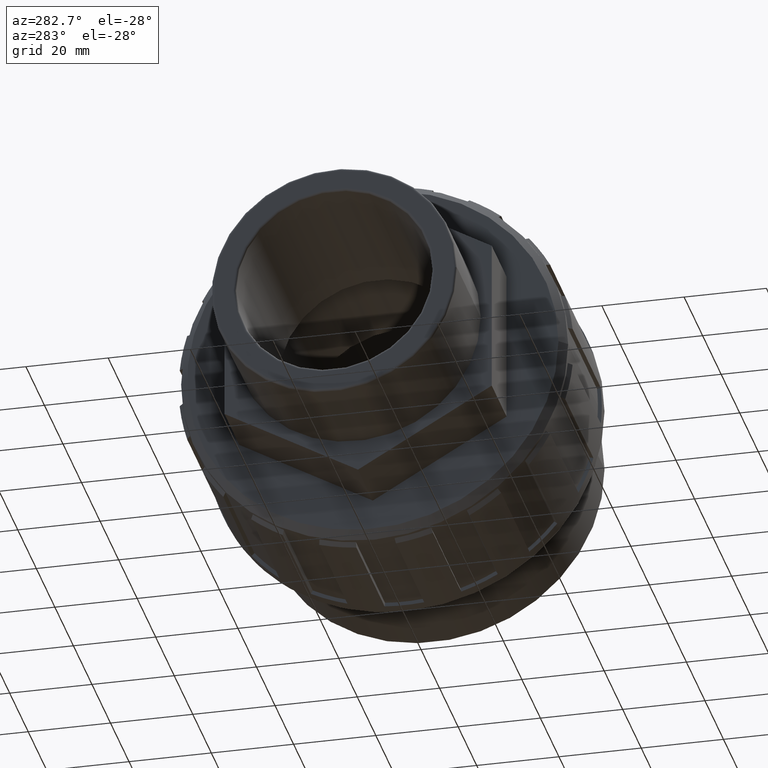
[diagram: clean part render]
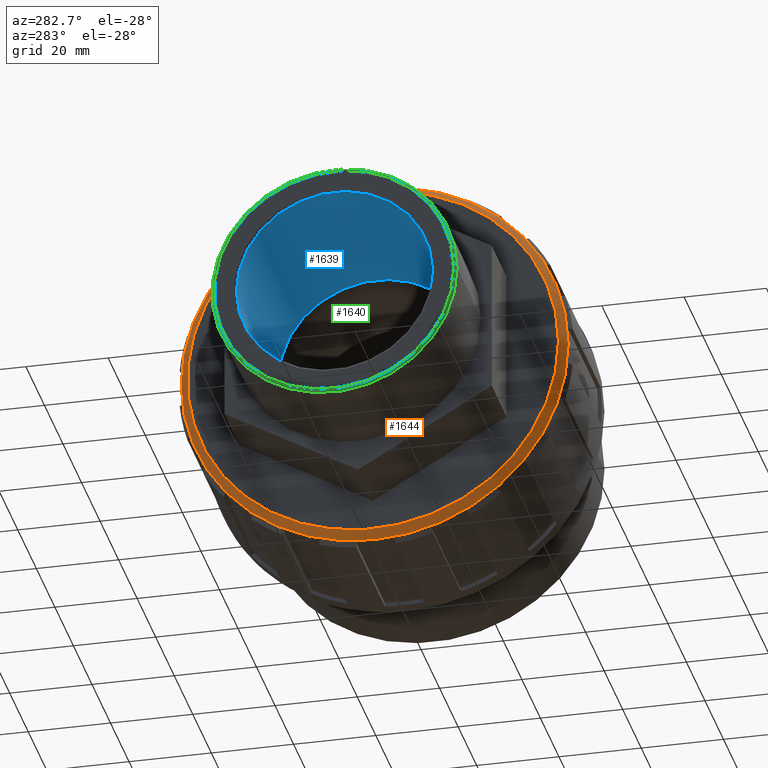
[diagram: same view with three faces highlighted in distinct colors, each labeled with its STEP entity id]
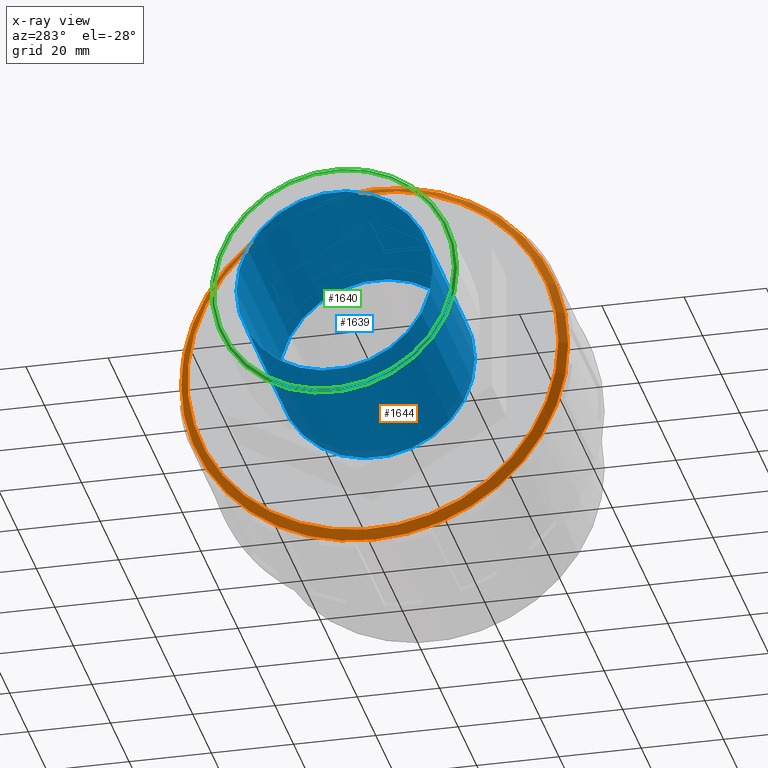
[diagram: x-ray of the same camera — body ghosted, the three highlighted faces saturated]
A machine part, auxiliary view with three faces highlighted in distinct colors.
The next image is the same camera in x-ray (body ghosted, the three faces saturated) — at least one of them is partly hidden behind the body in this view.
Their STEP definitions:

[orange] entity #1644 — the highlighted conical surface has half-angle 45 deg.
#36=CONICAL_SURFACE('',#1816,46.08,45.0000000000001);
#50=FACE_BOUND('',#340,.T.);
#145=CIRCLE('',#1817,47.04);
#146=CIRCLE('',#1818,45.12);
#234=FACE_OUTER_BOUND('',#339,.T.);
#339=EDGE_LOOP('',(#1408));
#340=EDGE_LOOP('',(#1409));
#803=VERTEX_POINT('',#2794);
#804=VERTEX_POINT('',#2796);
#1033=EDGE_CURVE('',#803,#803,#145,.T.);
#1034=EDGE_CURVE('',#804,#804,#146,.T.);
#1408=ORIENTED_EDGE('',*,*,#1033,.T.);
#1409=ORIENTED_EDGE('',*,*,#1034,.T.);
#1644=ADVANCED_FACE('',(#234,#50),#36,.T.);
#1816=AXIS2_PLACEMENT_3D('',#2793,#2301,#2302);
#1817=AXIS2_PLACEMENT_3D('',#2795,#2303,#2304);
#1818=AXIS2_PLACEMENT_3D('',#2797,#2305,#2306);
#2301=DIRECTION('center_axis',(1.,4.89858719658941E-16,0.));
#2302=DIRECTION('ref_axis',(-5.05987925503356E-16,1.,0.));
#2303=DIRECTION('center_axis',(-1.,-4.89858719658941E-16,0.));
#2304=DIRECTION('ref_axis',(-5.21458796415345E-16,1.,0.));
#2305=DIRECTION('center_axis',(1.,4.89858719658941E-16,0.));
#2306=DIRECTION('ref_axis',(-4.89858719658941E-16,1.,0.));
#2793=CARTESIAN_POINT('Origin',(-11.04,4.51159880805884E-15,0.));
#2794=CARTESIAN_POINT('',(-10.08,-47.04,5.76073854318915E-15));
#2795=CARTESIAN_POINT('Origin',(-10.08,4.98186317893142E-15,0.));
#2796=CARTESIAN_POINT('',(-12.,-45.12,-5.52560635775286E-15));
#2797=CARTESIAN_POINT('Origin',(-12.,4.04133443718626E-15,0.));

[blue] entity #1639 — the highlighted cylindrical surface (bore or boss wall) has radius 23.8456 mm, axis along (-1, -0, 0).
#47=FACE_BOUND('',#332,.T.);
#62=CYLINDRICAL_SURFACE('',#1807,23.8456);
#139=CIRCLE('',#1804,23.8456);
#141=CIRCLE('',#1808,23.8456);
#229=FACE_OUTER_BOUND('',#331,.T.);
#331=EDGE_LOOP('',(#1394));
#332=EDGE_LOOP('',(#1395));
#797=VERTEX_POINT('',#2773);
#799=VERTEX_POINT('',#2779);
#1025=EDGE_CURVE('',#797,#797,#139,.T.);
#1027=EDGE_CURVE('',#799,#799,#141,.T.);
#1394=ORIENTED_EDGE('',*,*,#1027,.F.);
#1395=ORIENTED_EDGE('',*,*,#1025,.F.);
#1639=ADVANCED_FACE('',(#229,#47),#62,.F.);
#1804=AXIS2_PLACEMENT_3D('',#2774,#2275,#2276);
#1807=AXIS2_PLACEMENT_3D('',#2778,#2281,#2282);
#1808=AXIS2_PLACEMENT_3D('',#2780,#2283,#2284);
#2275=DIRECTION('center_axis',(1.,4.89858719658941E-16,0.));
#2276=DIRECTION('ref_axis',(-4.88867621639386E-16,1.,6.12323399573677E-17));
#2281=DIRECTION('center_axis',(-1.,-4.89858719658941E-16,0.));
#2282=DIRECTION('ref_axis',(5.21458796415345E-16,-1.,0.));
#2283=DIRECTION('center_axis',(-1.,-4.89858719658941E-16,0.));
#2284=DIRECTION('ref_axis',(0.,0.,1.));
#2773=CARTESIAN_POINT('',(-53.37,-23.8456,-4.38036565706222E-15));
#2774=CARTESIAN_POINT('Origin',(-53.37,-1.62241207951041E-14,0.));
#2778=CARTESIAN_POINT('Origin',(-30.9,-5.21699536436772E-15,0.));
#2779=CARTESIAN_POINT('',(-7.79999999999998,-23.8456,0.));
#2780=CARTESIAN_POINT('Origin',(-7.8,6.09874105975382E-15,0.));

[green] entity #1640 — the highlighted toroidal blend (fillet) surface has major radius 29.177 mm and minor (blend) radius 0.63 mm.
#19=TOROIDAL_SURFACE('',#1809,29.177,0.63);
#48=FACE_BOUND('',#334,.T.);
#140=CIRCLE('',#1806,29.177);
#142=CIRCLE('',#1810,29.807);
#230=FACE_OUTER_BOUND('',#333,.T.);
#333=EDGE_LOOP('',(#1396));
#334=EDGE_LOOP('',(#1397));
#798=VERTEX_POINT('',#2776);
#800=VERTEX_POINT('',#2782);
#1026=EDGE_CURVE('',#798,#798,#140,.T.);
#1028=EDGE_CURVE('',#800,#800,#142,.T.);
#1396=ORIENTED_EDGE('',*,*,#1028,.T.);
#1397=ORIENTED_EDGE('',*,*,#1026,.T.);
#1640=ADVANCED_FACE('',(#230,#48),#19,.T.);
#1806=AXIS2_PLACEMENT_3D('',#2777,#2279,#2280);
#1809=AXIS2_PLACEMENT_3D('',#2781,#2285,#2286);
#1810=AXIS2_PLACEMENT_3D('',#2783,#2287,#2288);
#2279=DIRECTION('center_axis',(1.,4.89858719658941E-16,0.));
#2280=DIRECTION('ref_axis',(-4.89858719658941E-16,1.,6.12323399573676E-17));
#2285=DIRECTION('center_axis',(-1.,-4.89858719658941E-16,0.));
#2286=DIRECTION('ref_axis',(0.,0.,1.));
#2287=DIRECTION('center_axis',(-1.,-4.89858719658941E-16,0.));
#2288=DIRECTION('ref_axis',(-4.88867621639386E-16,1.,6.12323399573677E-17));
#2776=CARTESIAN_POINT('',(-54.,-29.177,-5.35972794880835E-15));
#2777=CARTESIAN_POINT('Origin',(-54.,-1.65327317884893E-14,0.));
#2781=CARTESIAN_POINT('Origin',(-53.37,-1.62241207951041E-14,0.));
#2782=CARTESIAN_POINT('',(-53.37,-29.807,1.82515235710926E-15));
#2783=CARTESIAN_POINT('Origin',(-53.37,-1.62241207951041E-14,0.));